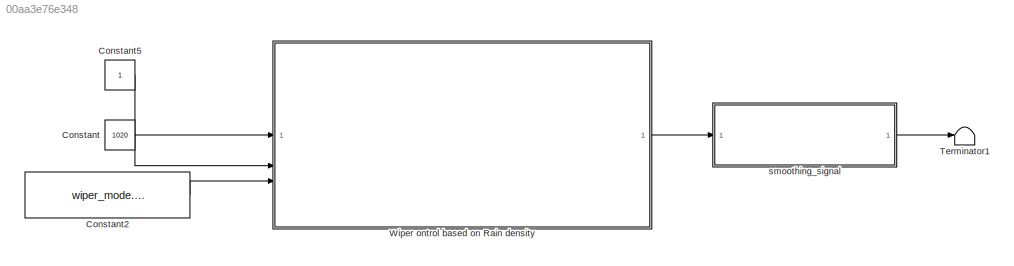
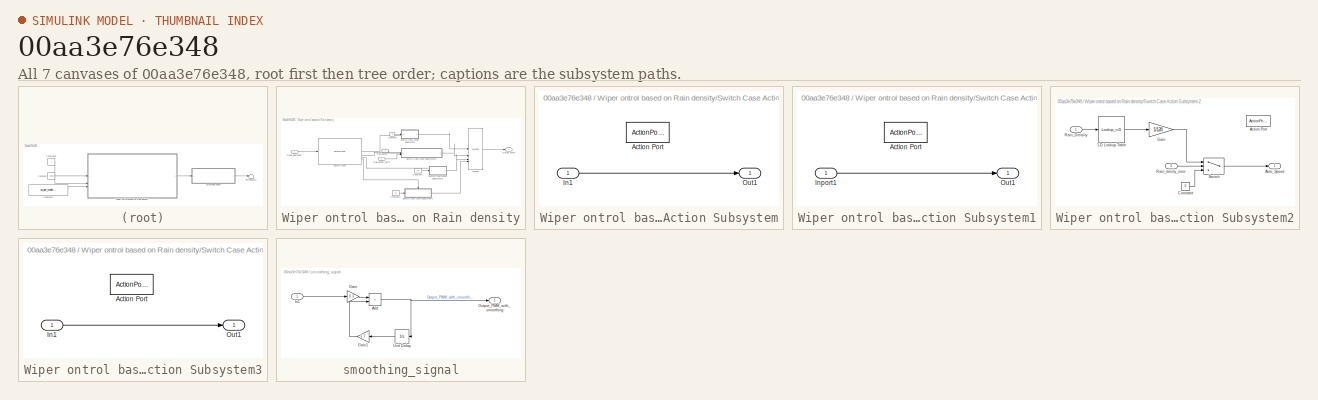
[diagram: thumbnail index - all 7 canvases of the model, root first then tree order]
MODEL slx_00aa3e76e348
KIND model
CONFIG AbsTol = auto
CONFIG EnableMultiTasking = off
CONFIG FixedStep = auto
CONFIG MaxStep = 1e-3
CONFIG MinStep = auto
CONFIG RelTol = 1e-3
CONFIG SampleTimeConstraint = Unconstrained
CONFIG SolverName = VariableStepAuto
CONFIG StartTime = 0.0
CONFIG StopTime = 10
BLOCK [Constant] Constant
  Value = 1020
BLOCK [Constant] Constant2
  OutDataTypeStr = Enum: wiper_mode
  Value = wiper_mode.auto
BLOCK [Constant] Constant5
BLOCK [Terminator] Terminator1
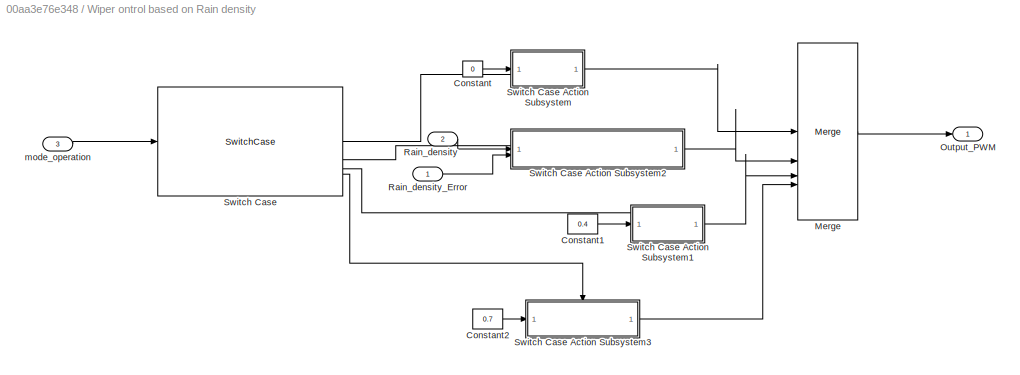
BLOCK [SubSystem] Wiper ontrol based on Rain density
BLOCK [Constant] Wiper ontrol based on Rain density/Constant
  Value = 0
BLOCK [Constant] Wiper ontrol based on Rain density/Constant1
  Value = 0.4
BLOCK [Constant] Wiper ontrol based on Rain density/Constant2
  Value = 0.7
BLOCK [Merge] Wiper ontrol based on Rain density/Merge
  Inputs = 4
BLOCK [Outport] Wiper ontrol based on Rain density/Output_PWM
BLOCK [Inport] Wiper ontrol based on Rain density/Rain_density
  Port = 2
BLOCK [Inport] Wiper ontrol based on Rain density/Rain_density_Error
BLOCK [SwitchCase] Wiper ontrol based on Rain density/Switch Case
  CaseConditions = [wiper_mode.off,wiper_mode.auto,wiper_mode.low_speed,wiper_mode.high_speed]
  ShowDefaultCase = off
BLOCK [SubSystem] Wiper ontrol based on Rain density/Switch Case Action Subsystem
  TreatAsAtomicUnit = on
BLOCK [ActionPort] Wiper ontrol based on Rain density/Switch Case Action Subsystem/Action Port
  ActionPortLabel = case [ off ]:
BLOCK [Inport] Wiper ontrol based on Rain density/Switch Case Action Subsystem/In1
BLOCK [Outport] Wiper ontrol based on Rain density/Switch Case Action Subsystem/Out1
BLOCK [SubSystem] Wiper ontrol based on Rain density/Switch Case Action Subsystem1
  TreatAsAtomicUnit = on
BLOCK [ActionPort] Wiper ontrol based on Rain density/Switch Case Action Subsystem1/Action Port
  ActionPortLabel = case [ low_speed ]:
BLOCK [Inport] Wiper ontrol based on Rain density/Switch Case Action Subsystem1/Inport1
BLOCK [Outport] Wiper ontrol based on Rain density/Switch Case Action Subsystem1/Out1
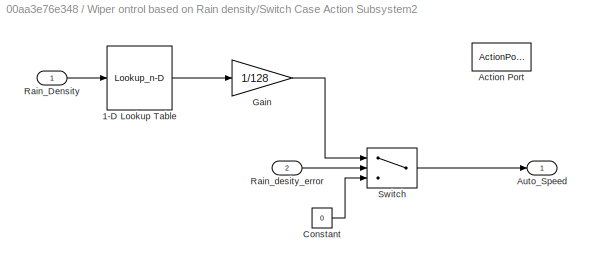
BLOCK [SubSystem] Wiper ontrol based on Rain density/Switch Case Action Subsystem2
  TreatAsAtomicUnit = on
BLOCK [Lookup_n-D] Wiper ontrol based on Rain density/Switch Case Action Subsystem2/1-D Lookup Table
  BreakpointsForDimension1 = [0 64 128 192 256]
  BreakpointsForDimension1FirstPoint = 10
  BreakpointsForDimension1Spacing = 12
  BreakpointsForDimension2FirstPoint = 10
  BreakpointsForDimension2Spacing = 12
  IndexSearchMethod = Evenly spaced points
  InputPortMap = u0
  InternalRulePriority = Speed
  LookupTableObject = ''
  NumberOfTableDimensions = 1
  RndMeth = Simplest
  Table = [0 256 512 768 1023]
BLOCK [ActionPort] Wiper ontrol based on Rain density/Switch Case Action Subsystem2/Action Port
  ActionPortLabel = case [ auto ]:
BLOCK [Outport] Wiper ontrol based on Rain density/Switch Case Action Subsystem2/Auto_Speed
BLOCK [Constant] Wiper ontrol based on Rain density/Switch Case Action Subsystem2/Constant
  Value = 0
BLOCK [Gain] Wiper ontrol based on Rain density/Switch Case Action Subsystem2/Gain
  Gain = 1/128
BLOCK [Inport] Wiper ontrol based on Rain density/Switch Case Action Subsystem2/Rain_Density
BLOCK [Inport] Wiper ontrol based on Rain density/Switch Case Action Subsystem2/Rain_desity_error
  Port = 2
BLOCK [Switch] Wiper ontrol based on Rain density/Switch Case Action Subsystem2/Switch
  Criteria = u2 ~= 0
  InputSameDT = off
  SaturateOnIntegerOverflow = off
BLOCK [SubSystem] Wiper ontrol based on Rain density/Switch Case Action Subsystem3
  TreatAsAtomicUnit = on
BLOCK [ActionPort] Wiper ontrol based on Rain density/Switch Case Action Subsystem3/Action Port
  ActionPortLabel = case [ high_speed ]:
BLOCK [Inport] Wiper ontrol based on Rain density/Switch Case Action Subsystem3/In1
BLOCK [Outport] Wiper ontrol based on Rain density/Switch Case Action Subsystem3/Out1
BLOCK [Inport] Wiper ontrol based on Rain density/mode_operation
  Port = 3
BLOCK [SubSystem] smoothing_signal
BLOCK [Sum] smoothing_signal/Add
  IconShape = rectangular
BLOCK [Gain] smoothing_signal/Gain
  Gain = 0.3
BLOCK [Gain] smoothing_signal/Gain1
  Gain = 0.7
BLOCK [Inport] smoothing_signal/In1
BLOCK [Outport] smoothing_signal/Output_PWM_with_smoothing
BLOCK [UnitDelay] smoothing_signal/Unit Delay
  HasFrameUpgradeWarning = on
  SampleTime = -1
LINE Constant2:1 -> Wiper ontrol based on Rain density:3
LINE Constant5:1 -> Wiper ontrol based on Rain density:1
LINE Constant:1 -> Wiper ontrol based on Rain density:2
LINE Wiper ontrol based on Rain density/Constant1:1 -> Wiper ontrol based on Rain density/Switch Case Action Subsystem1:1
LINE Wiper ontrol based on Rain density/Constant2:1 -> Wiper ontrol based on Rain density/Switch Case Action Subsystem3:1
LINE Wiper ontrol based on Rain density/Constant:1 -> Wiper ontrol based on Rain density/Switch Case Action Subsystem:1
LINE Wiper ontrol based on Rain density/Merge:1 -> Wiper ontrol based on Rain density/Output_PWM:1
LINE Wiper ontrol based on Rain density/Rain_density:1 -> Wiper ontrol based on Rain density/Switch Case Action Subsystem2:1
LINE Wiper ontrol based on Rain density/Rain_density_Error:1 -> Wiper ontrol based on Rain density/Switch Case Action Subsystem2:2
LINE Wiper ontrol based on Rain density/Switch Case Action Subsystem/In1:1 -> Wiper ontrol based on Rain density/Switch Case Action Subsystem/Out1:1
LINE Wiper ontrol based on Rain density/Switch Case Action Subsystem1/Inport1:1 -> Wiper ontrol based on Rain density/Switch Case Action Subsystem1/Out1:1
LINE Wiper ontrol based on Rain density/Switch Case Action Subsystem1:1 -> Wiper ontrol based on Rain density/Merge:3
LINE Wiper ontrol based on Rain density/Switch Case Action Subsystem2/1-D Lookup Table:1 -> Wiper ontrol based on Rain density/Switch Case Action Subsystem2/Gain:1
LINE Wiper ontrol based on Rain density/Switch Case Action Subsystem2/Constant:1 -> Wiper ontrol based on Rain density/Switch Case Action Subsystem2/Switch:3
LINE Wiper ontrol based on Rain density/Switch Case Action Subsystem2/Gain:1 -> Wiper ontrol based on Rain density/Switch Case Action Subsystem2/Switch:1
LINE Wiper ontrol based on Rain density/Switch Case Action Subsystem2/Rain_Density:1 -> Wiper ontrol based on Rain density/Switch Case Action Subsystem2/1-D Lookup Table:1
LINE Wiper ontrol based on Rain density/Switch Case Action Subsystem2/Rain_desity_error:1 -> Wiper ontrol based on Rain density/Switch Case Action Subsystem2/Switch:2
LINE Wiper ontrol based on Rain density/Switch Case Action Subsystem2/Switch:1 -> Wiper ontrol based on Rain density/Switch Case Action Subsystem2/Auto_Speed:1
LINE Wiper ontrol based on Rain density/Switch Case Action Subsystem2:1 -> Wiper ontrol based on Rain density/Merge:2
LINE Wiper ontrol based on Rain density/Switch Case Action Subsystem3/In1:1 -> Wiper ontrol based on Rain density/Switch Case Action Subsystem3/Out1:1
LINE Wiper ontrol based on Rain density/Switch Case Action Subsystem3:1 -> Wiper ontrol based on Rain density/Merge:4
LINE Wiper ontrol based on Rain density/Switch Case Action Subsystem:1 -> Wiper ontrol based on Rain density/Merge:1
LINE Wiper ontrol based on Rain density/Switch Case:1 -> Wiper ontrol based on Rain density/Switch Case Action Subsystem:ifaction
LINE Wiper ontrol based on Rain density/Switch Case:2 -> Wiper ontrol based on Rain density/Switch Case Action Subsystem2:ifaction
LINE Wiper ontrol based on Rain density/Switch Case:3 -> Wiper ontrol based on Rain density/Switch Case Action Subsystem1:ifaction
LINE Wiper ontrol based on Rain density/Switch Case:4 -> Wiper ontrol based on Rain density/Switch Case Action Subsystem3:ifaction
LINE Wiper ontrol based on Rain density/mode_operation:1 -> Wiper ontrol based on Rain density/Switch Case:1
LINE Wiper ontrol based on Rain density:1 -> smoothing_signal:1
NET smoothing_signal/Add:1 -> smoothing_signal/Output_PWM_with_smoothing:1, smoothing_signal/Unit Delay:1
LINE smoothing_signal/Gain1:1 -> smoothing_signal/Add:2
LINE smoothing_signal/Gain:1 -> smoothing_signal/Add:1
LINE smoothing_signal/In1:1 -> smoothing_signal/Gain:1
LINE smoothing_signal/Unit Delay:1 -> smoothing_signal/Gain1:1
LINE smoothing_signal:1 -> Terminator1:1
note: NET lines group one-source signal fan-out (src -> all destinations, sorted); 1:1 wires keep LINE
